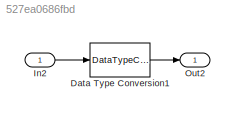
MODEL slx_527ea0686fbd
KIND model
CONFIG AbsTol = auto
CONFIG EnableMultiTasking = on
CONFIG FixedStep = 0.1
CONFIG MaxStep = auto
CONFIG MinStep = auto
CONFIG RelTol = 1e-3
CONFIG SampleTimeConstraint = Unconstrained
CONFIG Solver = FixedStepAuto
CONFIG SolverName = FixedStepAuto
CONFIG StartTime = 0.0
CONFIG StopTime = 10.0
BLOCK [DataTypeConversion] Data Type Conversion1
  OutDataTypeStr = single
  RndMeth = Floor
  SaturateOnIntegerOverflow = off
BLOCK [Inport] In2
  IconDisplay = Port number
  OutDataTypeStr = double
  PortDimensions = 1
BLOCK [Outport] Out2
  IconDisplay = Port number
LINE Data Type Conversion1:1 -> Out2:1
LINE In2:1 -> Data Type Conversion1:1
